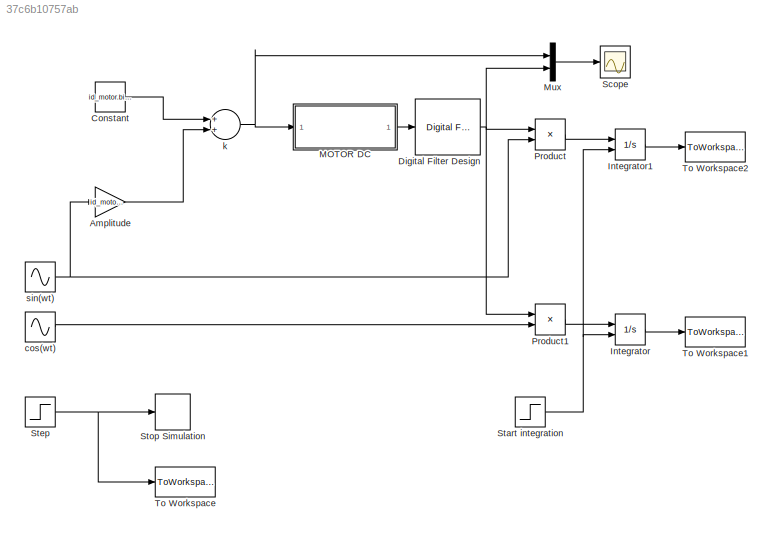
MODEL slx_37c6b10757ab
KIND model
BLOCK [Gain] Amplitude
  Gain = id_motor.u0
  OutDataTypeStr = Inherit: Inherit via internal rule
  ParamDataTypeStr = Inherit: Inherit via internal rule
  SaturateOnIntegerOverflow = off
BLOCK [Constant] Constant
  Value = id_motor.bias
BLOCK [Reference] Digital Filter Design  REF=dsparch4/Digital
Filter Design
  Ports = [1, 1]
  SourceBlock = dsparch4/Digital\nFilter Design
  SourceType = Digital Filter Design
  UserDataPersistent = on
  mwdsp_browser_bugfix_var = off
BLOCK [Integrator] Integrator
  ExternalReset = rising
  Ports = [2, 1]
BLOCK [Integrator] Integrator1
  ExternalReset = rising
  Ports = [2, 1]
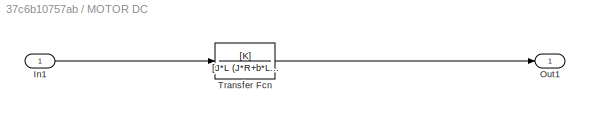
BLOCK [SubSystem] MOTOR DC 
  FunctionWithSeparateData = off
  MaskHideContents = off
  MinAlgLoopOccurrences = off
  Opaque = off
  Ports = [1, 1]
  PropExecContextOutsideSubsystem = off
  RTWSystemCode = Auto
  RequestExecContextInheritance = off
  TreatAsAtomicUnit = on
BLOCK [Inport] MOTOR DC /In1
  IconDisplay = Port number
BLOCK [Outport] MOTOR DC /Out1
  IconDisplay = Port number
BLOCK [TransferFcn] MOTOR DC /Transfer Fcn
  Denominator = [J*L (J*R+b*L) b*R+K^2]
  Numerator = [K]
BLOCK [Mux] Mux
  DisplayOption = bar
  Inputs = 2
  Ports = [2, 1]
BLOCK [Product] Product
  InputSameDT = off
  OutDataTypeStr = Inherit: Inherit via internal rule
  Ports = [2, 1]
  RndMeth = Floor
  SaturateOnIntegerOverflow = off
BLOCK [Product] Product1
  InputSameDT = off
  OutDataTypeStr = Inherit: Inherit via internal rule
  Ports = [2, 1]
  RndMeth = Floor
  SaturateOnIntegerOverflow = off
BLOCK [Scope] Scope
  DataFormat = StructureWithTime
  Floating = off
  NumInputPorts = 1
  Ports = [1]
  SampleTime = 0
  ShowLegends = off
  TimeRange = 10
  YMax = 10
  YMin = -10
BLOCK [Step] Start integration
  SampleTime = 0
  Time = id_motor.Tstart
BLOCK [Step] Step
  SampleTime = 0
  Time = id_motor.Tstop
BLOCK [Stop] Stop Simulation
BLOCK [ToWorkspace] To Workspace
  MaxDataPoints = inf
  Ports = [1]
  SampleTime = -1
  SaveFormat = Timeseries
  VariableName = fin
BLOCK [ToWorkspace] To Workspace1
  MaxDataPoints = inf
  Ports = [1]
  SampleTime = -1
  VariableName = c_T
BLOCK [ToWorkspace] To Workspace2
  MaxDataPoints = inf
  Ports = [1]
  SampleTime = -1
  VariableName = s_T
BLOCK [Sin] cos(wt)
  Frequency = id_motor.w
  Offset = 5
  Phase = pi/2
  Ports = [0, 1]
  SampleTime = id_motor.s
  Samples = id_motor.w/id_motor.s
BLOCK [Sum] k
  InputSameDT = off
  OutDataTypeStr = Inherit: Inherit via internal rule
  Ports = [2, 1]
  SaturateOnIntegerOverflow = off
BLOCK [Sin] sin(wt)
  Frequency = id_motor.w
  Ports = [0, 1]
  SampleTime = id_motor.s
  Samples = (id_motor.w)/(id_motor.s)
LINE Amplitude:1 -> k:2
LINE Constant:1 -> k:1
NET Digital Filter Design:1 -> Mux:2, Product1:1, Product:1
LINE Integrator1:1 -> To Workspace2:1
LINE Integrator:1 -> To Workspace1:1
LINE MOTOR DC /In1:1 -> MOTOR DC /Transfer Fcn:1
LINE MOTOR DC /Transfer Fcn:1 -> MOTOR DC /Out1:1
LINE MOTOR DC :1 -> Digital Filter Design:1
LINE Mux:1 -> Scope:1
LINE Product1:1 -> Integrator:1
LINE Product:1 -> Integrator1:1
NET Start integration:1 -> Integrator1:2, Integrator:2
NET Step:1 -> Stop Simulation:1, To Workspace:1
LINE cos(wt):1 -> Product1:2
NET k:1 -> MOTOR DC :1, Mux:1
NET sin(wt):1 -> Amplitude:1, Product:2
note: NET lines group one-source signal fan-out (src -> all destinations, sorted); 1:1 wires keep LINE
